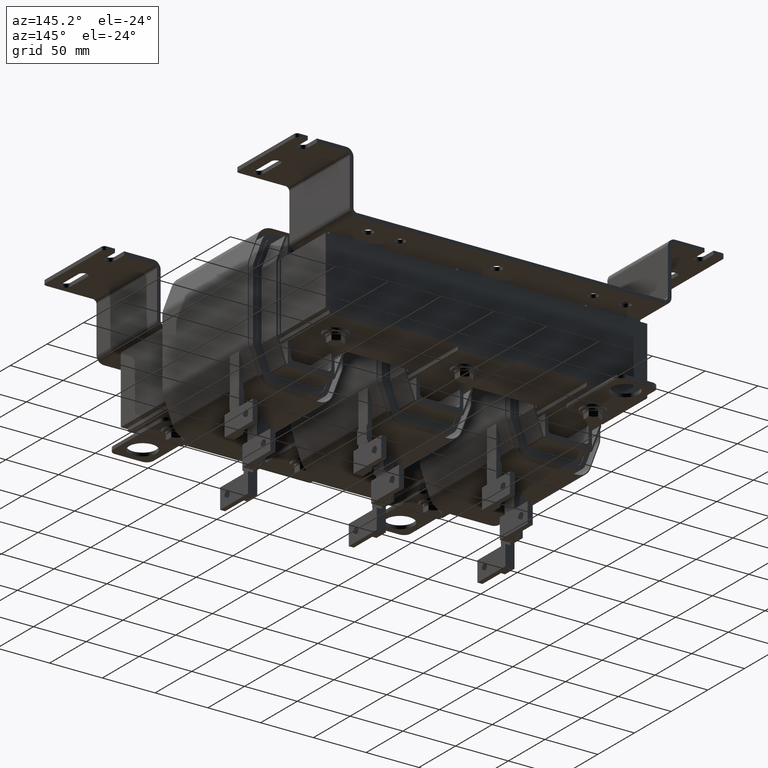
[diagram: clean part render]
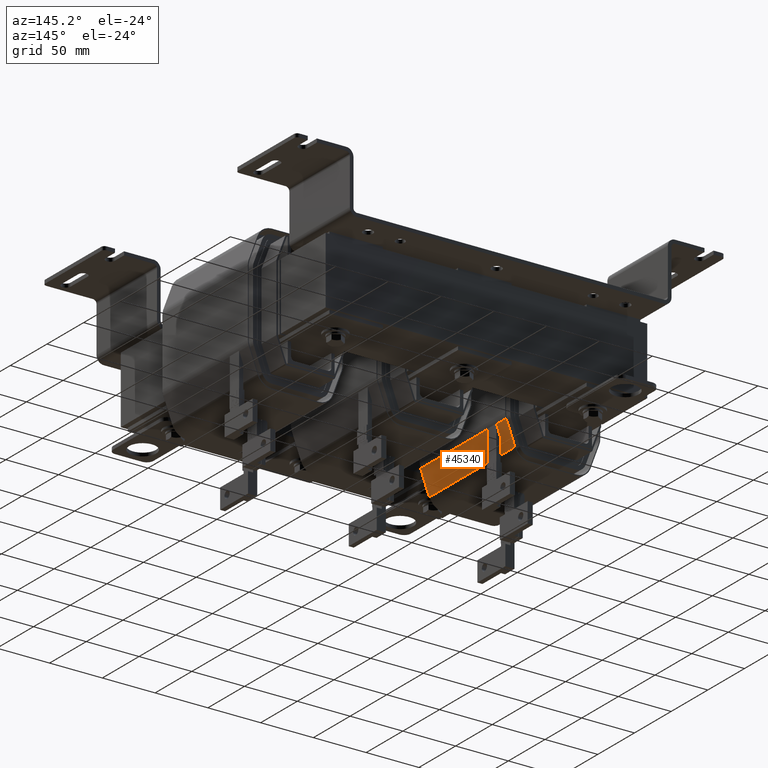
[diagram: same view with one face highlighted and labeled with its STEP entity id]
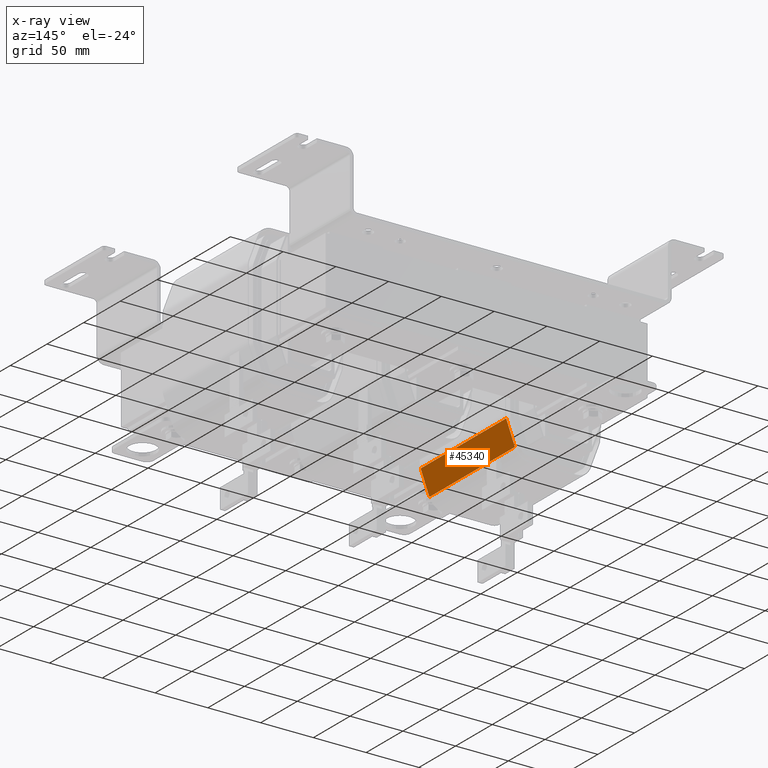
[diagram: x-ray of the same camera — body ghosted, the highlighted face saturated]
A machine part, auxiliary view. The second image highlights one B-rep face of the part: STEP entity #45340.
The next image is the same camera in x-ray: the body ghosted, the highlighted face saturated — about 0% of this face is hidden behind the body in this view.
In plain terms, the highlighted planar face has unit normal (0.9374, -0, -0.3482).
Its self-contained STEP definition (entity closure, byte-faithful):
#3805=PLANE('',#48813);
#5940=FACE_OUTER_BOUND('',#8531,.T.);
#8531=EDGE_LOOP('',(#40701,#40702,#40703,#40704));
#12829=LINE('',#78101,#17110);
#12830=LINE('',#78104,#17111);
#12831=LINE('',#78106,#17112);
#12832=LINE('',#78107,#17113);
#17110=VECTOR('',#58321,0.393700787401575);
#17111=VECTOR('',#58324,0.393700787401575);
#17112=VECTOR('',#58325,0.393700787401575);
#17113=VECTOR('',#58326,0.393700787401575);
#22311=VERTEX_POINT('',#78097);
#22312=VERTEX_POINT('',#78099);
#22313=VERTEX_POINT('',#78103);
#22314=VERTEX_POINT('',#78105);
#28557=EDGE_CURVE('',#22311,#22312,#12829,.T.);
#28558=EDGE_CURVE('',#22311,#22313,#12830,.T.);
#28559=EDGE_CURVE('',#22314,#22312,#12831,.T.);
#28560=EDGE_CURVE('',#22313,#22314,#12832,.T.);
#40701=ORIENTED_EDGE('',*,*,#28558,.F.);
#40702=ORIENTED_EDGE('',*,*,#28557,.T.);
#40703=ORIENTED_EDGE('',*,*,#28559,.F.);
#40704=ORIENTED_EDGE('',*,*,#28560,.F.);
#45340=ADVANCED_FACE('',(#5940),#3805,.T.);
#48813=AXIS2_PLACEMENT_3D('',#78102,#58322,#58323);
#58321=DIRECTION('',(0.,0.,1.));
#58322=DIRECTION('center_axis',(-0.348186529909533,0.937425271896143,0.));
#58323=DIRECTION('ref_axis',(-0.937425271896143,-0.348186529909533,0.));
#58324=DIRECTION('',(0.937425271896143,0.348186529909533,0.));
#58325=DIRECTION('',(-0.937425271896143,-0.348186529909533,0.));
#58326=DIRECTION('',(0.,0.,1.));
#78097=CARTESIAN_POINT('',(-1.07416269493974,-0.330792744413103,0.));
#78099=CARTESIAN_POINT('',(-1.07416269493974,-0.330792744413103,4.59));
#78101=CARTESIAN_POINT('',(-1.07416269493974,-0.330792744413103,0.));
#78102=CARTESIAN_POINT('Origin',(-0.19916269505089,-0.00579274412946006,
0.));
#78103=CARTESIAN_POINT('',(-0.19916269505089,-0.00579274412946012,0.));
#78104=CARTESIAN_POINT('',(-1.07416269493974,-0.330792744413103,0.));
#78105=CARTESIAN_POINT('',(-0.19916269505089,-0.00579274412945989,4.59));
#78106=CARTESIAN_POINT('',(-1.07416269493974,-0.330792744413103,4.59));
#78107=CARTESIAN_POINT('',(-0.19916269505089,-0.00579274412946012,0.));